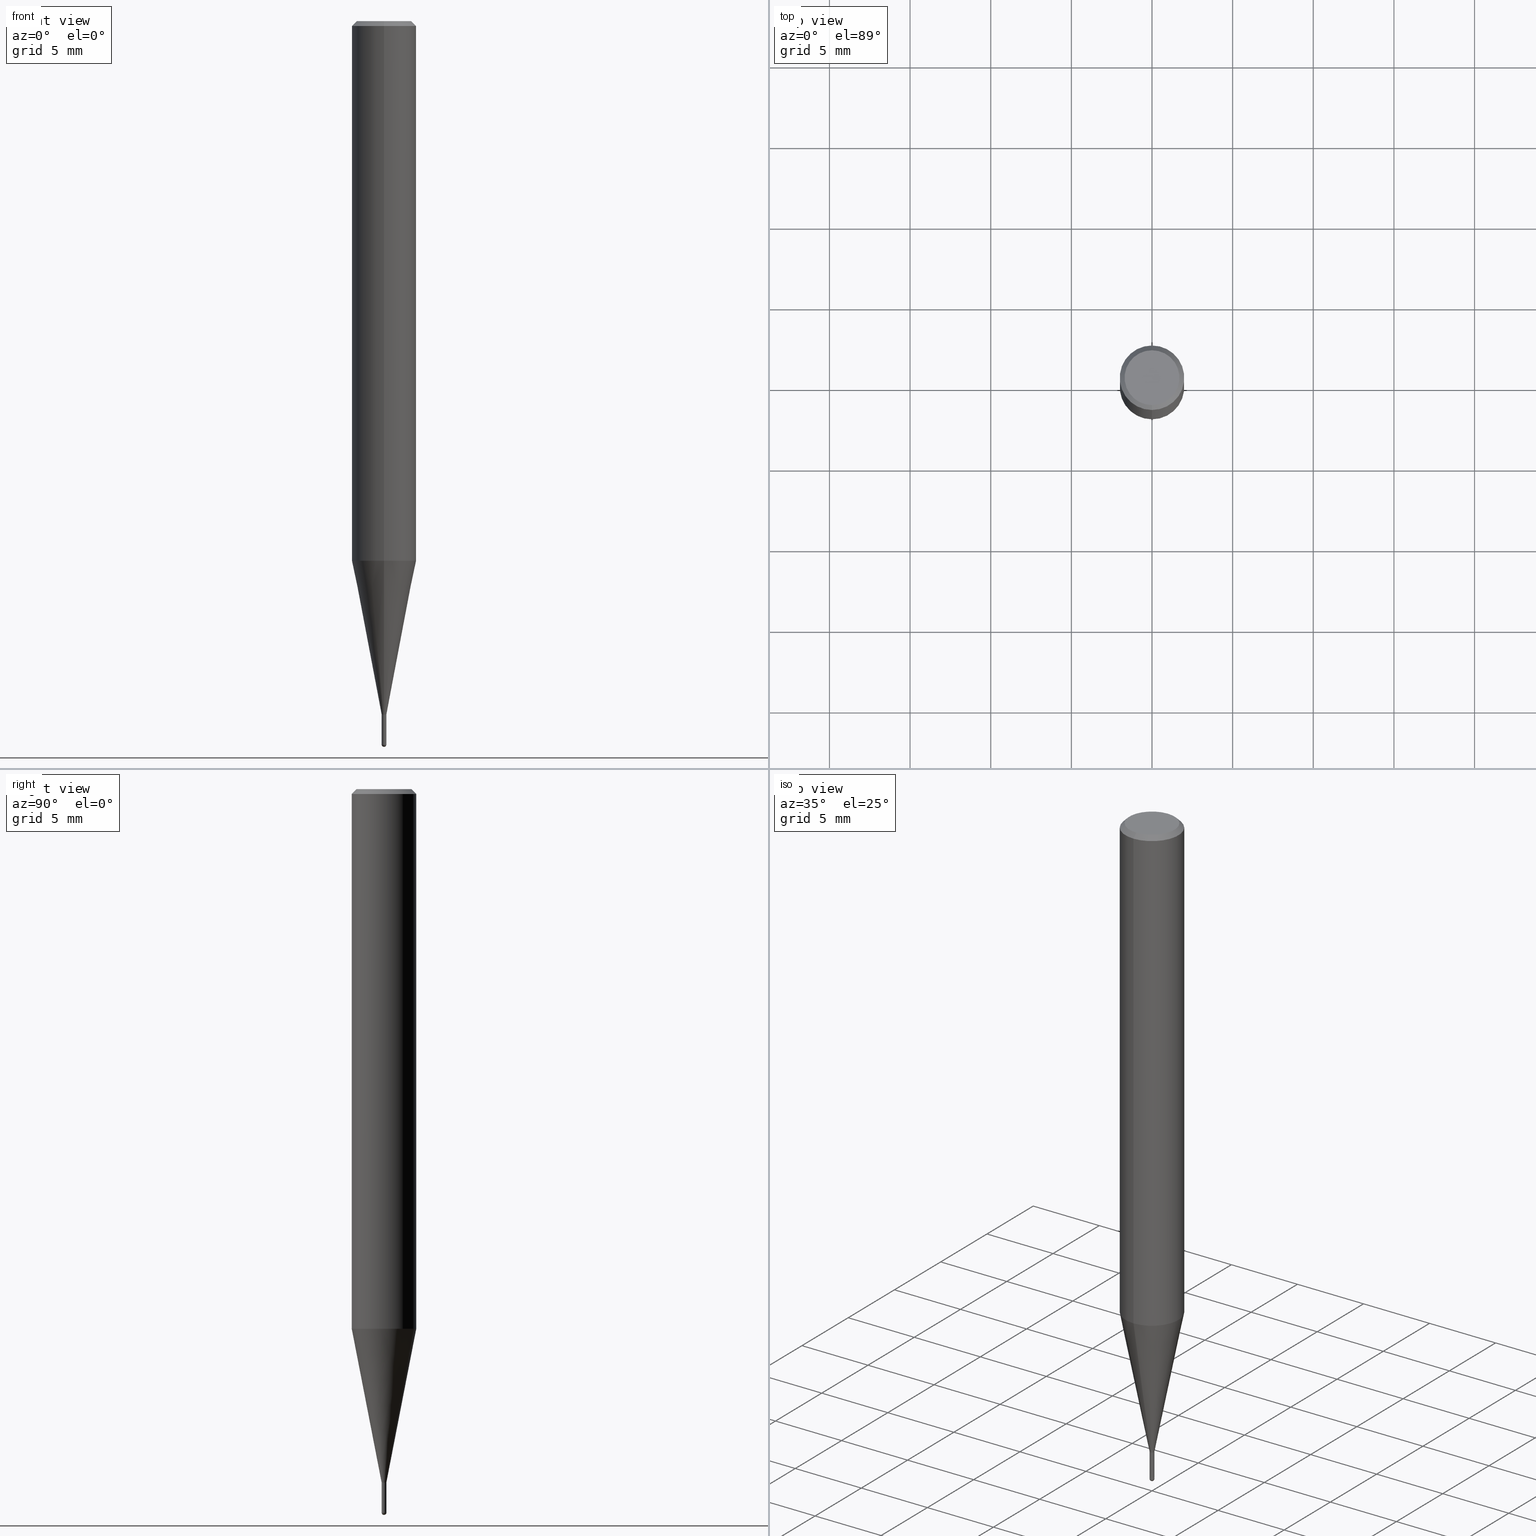
[diagram: canonical four-view strip — front | top / right | iso, engineering-drawing reading convention]
A machine part, canonical four-view strip (front | top / right | iso — engineering-drawing reading convention). The complete STEP part file that produces these views, byte-faithful:
ISO-10303-21;
HEADER;
FILE_DESCRIPTION(('no description'),'unknown implementation level');
FILE_NAME('CSELB2003-020-Huellk.stp','  ',('CIMSOURCE GmbH'),('CADClick - KiM GmbH - www.kimweb.de'),'unknown preprocess','ACIS','unknown authorization');
FILE_SCHEMA(('automotive_design'));
ENDSEC;
DATA;
#1=MECHANICAL_DESIGN_GEOMETRIC_PRESENTATION_REPRESENTATION(' ',(#14,#15,#16,#17,#18,#19,#20,#21,#22,#23,#24,#25,#26,#27,#28,#29,#30,#31,#32,#33,#34,#35,#36,#37,#38,#39,#40,#41,#42,#43,#44,#45,#46,#47,#48,#49,#50,#51,#52,#53,#54,#55,#56,#57,#58,#59,#60,#61,#62,#63,#64,#65,#66,#67,#68,#69,#70,#71,#72,#73,#74),#10);
#2=PRODUCT_DEFINITION_CONTEXT('',#75,'design');
#3=APPLICATION_PROTOCOL_DEFINITION('INTERNATIONAL STANDARD','automotive_design',1994,#75);
#4=PRODUCT_CATEGORY_RELATIONSHIP('NONE','NONE',#76,#77);
#5=SHAPE_DEFINITION_REPRESENTATION(#78,#79);
#6=PRODUCT_DEFINITION_CONTEXT('',#80,'design');
#7=APPLICATION_PROTOCOL_DEFINITION('INTERNATIONAL STANDARD','automotive_design',1994,#80);
#8=PRODUCT_CATEGORY_RELATIONSHIP('NONE','NONE',#81,#82);
#9=SHAPE_DEFINITION_REPRESENTATION(#83,#84);
#10= (GEOMETRIC_REPRESENTATION_CONTEXT(3)GLOBAL_UNCERTAINTY_ASSIGNED_CONTEXT((#87))GLOBAL_UNIT_ASSIGNED_CONTEXT((#89,#90,#91))REPRESENTATION_CONTEXT('NONE','WORKSPACE'));
#14=STYLED_ITEM('',(#93),#94);
#15=STYLED_ITEM('',(#95),#96);
#16=STYLED_ITEM('',(#97),#98);
#17=STYLED_ITEM('',(#99),#100);
#18=STYLED_ITEM('',(#101),#102);
#19=STYLED_ITEM('',(#103),#104);
#20=STYLED_ITEM('',(#105),#106);
#21=STYLED_ITEM('',(#107),#108);
#22=STYLED_ITEM('',(#109),#110);
#23=STYLED_ITEM('',(#111),#112);
#24=STYLED_ITEM('',(#113),#114);
#25=STYLED_ITEM('',(#115),#116);
#26=STYLED_ITEM('',(#117),#118);
#27=STYLED_ITEM('',(#119),#120);
#28=STYLED_ITEM('',(#121),#122);
#29=STYLED_ITEM('',(#123),#124);
#30=STYLED_ITEM('',(#125),#126);
#31=STYLED_ITEM('',(#127),#128);
#32=STYLED_ITEM('',(#129),#130);
#33=STYLED_ITEM('',(#131),#132);
#34=STYLED_ITEM('',(#133),#134);
#35=STYLED_ITEM('',(#135),#136);
#36=STYLED_ITEM('',(#137),#138);
#37=STYLED_ITEM('',(#139),#140);
#38=STYLED_ITEM('',(#141),#142);
#39=STYLED_ITEM('',(#143),#144);
#40=STYLED_ITEM('',(#145),#146);
#41=STYLED_ITEM('',(#147),#148);
#42=STYLED_ITEM('',(#149),#150);
#43=STYLED_ITEM('',(#151),#152);
#44=STYLED_ITEM('',(#153),#154);
#45=STYLED_ITEM('',(#155),#156);
#46=STYLED_ITEM('',(#157),#158);
#47=STYLED_ITEM('',(#159),#160);
#48=STYLED_ITEM('',(#161),#162);
#49=STYLED_ITEM('',(#163),#164);
#50=STYLED_ITEM('',(#165),#166);
#51=STYLED_ITEM('',(#167),#168);
#52=STYLED_ITEM('',(#169),#170);
#53=STYLED_ITEM('',(#171),#172);
#54=STYLED_ITEM('',(#173),#174);
#55=STYLED_ITEM('',(#175),#176);
#56=STYLED_ITEM('',(#177),#178);
#57=STYLED_ITEM('',(#179),#180);
#58=STYLED_ITEM('',(#181),#182);
#59=STYLED_ITEM('',(#183),#184);
#60=STYLED_ITEM('',(#185),#186);
#61=STYLED_ITEM('',(#187),#188);
#62=STYLED_ITEM('',(#189),#190);
#63=STYLED_ITEM('',(#191),#192);
#64=STYLED_ITEM('',(#193),#194);
#65=STYLED_ITEM('',(#195),#196);
#66=STYLED_ITEM('',(#197),#198);
#67=STYLED_ITEM('',(#199),#200);
#68=STYLED_ITEM('',(#201),#202);
#69=STYLED_ITEM('',(#203),#204);
#70=STYLED_ITEM('',(#205),#206);
#71=STYLED_ITEM('',(#207),#208);
#72=STYLED_ITEM('',(#209),#210);
#73=STYLED_ITEM('',(#211),#212);
#74=STYLED_ITEM('',(#213),#214);
#75=APPLICATION_CONTEXT(' ');
#76=PRODUCT_CATEGORY('part','NONE');
#77=PRODUCT_RELATED_PRODUCT_CATEGORY('detail',' ',(#215));
#78=PRODUCT_DEFINITION_SHAPE('NONE','NONE',#216);
#79=ADVANCED_BREP_SHAPE_REPRESENTATION('1',(#128,#217),#10);
#80=APPLICATION_CONTEXT(' ');
#81=PRODUCT_CATEGORY('part','NONE');
#82=PRODUCT_RELATED_PRODUCT_CATEGORY('detail',' ',(#218));
#83=PRODUCT_DEFINITION_SHAPE('NONE','NONE',#219);
#84=ADVANCED_BREP_SHAPE_REPRESENTATION('2',(#144,#220),#10);
#87=UNCERTAINTY_MEASURE_WITH_UNIT(LENGTH_MEASURE(1.0E-006),#89,'','');
#89= (CONVERSION_BASED_UNIT('MILLIMETRE',#223)LENGTH_UNIT()NAMED_UNIT(#226));
#90= (NAMED_UNIT(#228)PLANE_ANGLE_UNIT()SI_UNIT($,.RADIAN.));
#91= (NAMED_UNIT(#228)SOLID_ANGLE_UNIT()SI_UNIT($,.STERADIAN.));
#93=PRESENTATION_STYLE_ASSIGNMENT((#234));
#94=ADVANCED_FACE('',(#235),#236,.T.);
#95=PRESENTATION_STYLE_ASSIGNMENT((#237));
#96=EDGE_CURVE('',#188,#104,#238,.T.);
#97=PRESENTATION_STYLE_ASSIGNMENT((#239));
#98=ADVANCED_FACE('',(#240),#241,.T.);
#99=PRESENTATION_STYLE_ASSIGNMENT((#242));
#100=EDGE_CURVE('',#136,#176,#243,.T.);
#101=PRESENTATION_STYLE_ASSIGNMENT((#244));
#102=EDGE_CURVE('',#210,#162,#245,.T.);
#103=PRESENTATION_STYLE_ASSIGNMENT((#246));
#104=VERTEX_POINT('',#247);
#105=PRESENTATION_STYLE_ASSIGNMENT((#248));
#106=EDGE_CURVE('',#104,#188,#249,.T.);
#107=PRESENTATION_STYLE_ASSIGNMENT((#250));
#108=ADVANCED_FACE('',(#251),#252,.T.);
#109=PRESENTATION_STYLE_ASSIGNMENT((#253));
#110=VERTEX_POINT('',#254);
#111=PRESENTATION_STYLE_ASSIGNMENT((#255));
#112=EDGE_CURVE('',#182,#172,#256,.T.);
#113=PRESENTATION_STYLE_ASSIGNMENT((#257));
#114=ADVANCED_FACE('',(#258),#259,.T.);
#115=PRESENTATION_STYLE_ASSIGNMENT((#260));
#116=ADVANCED_FACE('',(#261),#262,.T.);
#117=PRESENTATION_STYLE_ASSIGNMENT((#263));
#118=EDGE_CURVE('',#176,#104,#264,.T.);
#119=PRESENTATION_STYLE_ASSIGNMENT((#265));
#120=VERTEX_POINT('',#266);
#121=PRESENTATION_STYLE_ASSIGNMENT((#267));
#122=VERTEX_POINT('',#268);
#123=PRESENTATION_STYLE_ASSIGNMENT((#269));
#124=EDGE_CURVE('',#188,#136,#270,.T.);
#125=PRESENTATION_STYLE_ASSIGNMENT((#271));
#126=EDGE_CURVE('',#162,#210,#272,.T.);
#127=PRESENTATION_STYLE_ASSIGNMENT((#273));
#128=MANIFOLD_SOLID_BREP('1',#274);
#129=PRESENTATION_STYLE_ASSIGNMENT((#275));
#130=VERTEX_POINT('',#276);
#131=PRESENTATION_STYLE_ASSIGNMENT((#277));
#132=ADVANCED_FACE('',(#278),#279,.T.);
#133=PRESENTATION_STYLE_ASSIGNMENT((#280));
#134=EDGE_CURVE('',#206,#184,#281,.T.);
#135=PRESENTATION_STYLE_ASSIGNMENT((#282));
#136=VERTEX_POINT('',#283);
#137=PRESENTATION_STYLE_ASSIGNMENT((#284));
#138=ADVANCED_FACE('',(#285),#286,.T.);
#139=PRESENTATION_STYLE_ASSIGNMENT((#287));
#140=EDGE_CURVE('',#172,#182,#288,.T.);
#141=PRESENTATION_STYLE_ASSIGNMENT((#289));
#142=EDGE_CURVE('',#172,#192,#290,.T.);
#143=PRESENTATION_STYLE_ASSIGNMENT((#291));
#144=MANIFOLD_SOLID_BREP('2',#292);
#145=PRESENTATION_STYLE_ASSIGNMENT((#293));
#146=EDGE_CURVE('',#162,#120,#294,.T.);
#147=PRESENTATION_STYLE_ASSIGNMENT((#295));
#148=EDGE_CURVE('',#120,#122,#296,.T.);
#149=PRESENTATION_STYLE_ASSIGNMENT((#297));
#150=ADVANCED_FACE('',(#298),#299,.T.);
#151=PRESENTATION_STYLE_ASSIGNMENT((#300));
#152=ADVANCED_FACE('',(#301),#302,.T.);
#153=PRESENTATION_STYLE_ASSIGNMENT((#303));
#154=ADVANCED_FACE('',(#304,#305),#306,.T.);
#155=PRESENTATION_STYLE_ASSIGNMENT((#307));
#156=ADVANCED_FACE('',(#308),#309,.T.);
#157=PRESENTATION_STYLE_ASSIGNMENT((#310));
#158=EDGE_CURVE('',#210,#184,#311,.T.);
#159=PRESENTATION_STYLE_ASSIGNMENT((#312));
#160=VERTEX_POINT('',#313);
#161=PRESENTATION_STYLE_ASSIGNMENT((#314));
#162=VERTEX_POINT('',#315);
#163=PRESENTATION_STYLE_ASSIGNMENT((#316));
#164=EDGE_CURVE('',#104,#110,#317,.T.);
#165=PRESENTATION_STYLE_ASSIGNMENT((#318));
#166=ADVANCED_FACE('',(#319),#320,.T.);
#167=PRESENTATION_STYLE_ASSIGNMENT((#321));
#168=EDGE_CURVE('',#206,#162,#322,.T.);
#169=PRESENTATION_STYLE_ASSIGNMENT((#323));
#170=ADVANCED_FACE('',(#324),#325,.T.);
#171=PRESENTATION_STYLE_ASSIGNMENT((#326));
#172=VERTEX_POINT('',#327);
#173=PRESENTATION_STYLE_ASSIGNMENT((#328));
#174=EDGE_CURVE('',#192,#130,#329,.T.);
#175=PRESENTATION_STYLE_ASSIGNMENT((#330));
#176=VERTEX_POINT('',#331);
#177=PRESENTATION_STYLE_ASSIGNMENT((#332));
#178=EDGE_CURVE('',#160,#188,#333,.T.);
#179=PRESENTATION_STYLE_ASSIGNMENT((#334));
#180=ADVANCED_FACE('',(#335),#336,.T.);
#181=PRESENTATION_STYLE_ASSIGNMENT((#337));
#182=VERTEX_POINT('',#338);
#183=PRESENTATION_STYLE_ASSIGNMENT((#339));
#184=VERTEX_POINT('',#340);
#185=PRESENTATION_STYLE_ASSIGNMENT((#341));
#186=ADVANCED_FACE('',(#342),#343,.T.);
#187=PRESENTATION_STYLE_ASSIGNMENT((#344));
#188=VERTEX_POINT('',#345);
#189=PRESENTATION_STYLE_ASSIGNMENT((#346));
#190=EDGE_CURVE('',#160,#110,#347,.T.);
#191=PRESENTATION_STYLE_ASSIGNMENT((#348));
#192=VERTEX_POINT('',#349);
#193=PRESENTATION_STYLE_ASSIGNMENT((#350));
#194=EDGE_CURVE('',#130,#192,#351,.T.);
#195=PRESENTATION_STYLE_ASSIGNMENT((#352));
#196=EDGE_CURVE('',#122,#120,#353,.T.);
#197=PRESENTATION_STYLE_ASSIGNMENT((#354));
#198=ADVANCED_FACE('',(#355),#356,.T.);
#199=PRESENTATION_STYLE_ASSIGNMENT((#357));
#200=EDGE_CURVE('',#176,#136,#358,.T.);
#201=PRESENTATION_STYLE_ASSIGNMENT((#359));
#202=EDGE_CURVE('',#130,#182,#360,.T.);
#203=PRESENTATION_STYLE_ASSIGNMENT((#361));
#204=EDGE_CURVE('',#110,#160,#362,.T.);
#205=PRESENTATION_STYLE_ASSIGNMENT((#363));
#206=VERTEX_POINT('',#364);
#207=PRESENTATION_STYLE_ASSIGNMENT((#365));
#208=EDGE_CURVE('',#122,#210,#366,.T.);
#209=PRESENTATION_STYLE_ASSIGNMENT((#367));
#210=VERTEX_POINT('',#368);
#211=PRESENTATION_STYLE_ASSIGNMENT((#369));
#212=EDGE_CURVE('',#184,#206,#370,.T.);
#213=PRESENTATION_STYLE_ASSIGNMENT((#371));
#214=EDGE_CURVE('',#172,#182,#372,.T.);
#215=PRODUCT('1','1','PART-1-DESC',(#373));
#216=PRODUCT_DEFINITION('NONE','NONE',#374,#2);
#217=AXIS2_PLACEMENT_3D('',#375,#376,#377);
#218=PRODUCT('2','2','PART-2-DESC',(#378));
#219=PRODUCT_DEFINITION('NONE','NONE',#379,#6);
#220=AXIS2_PLACEMENT_3D('',#380,#381,#382);
#223=LENGTH_MEASURE_WITH_UNIT(LENGTH_MEASURE(1.0),#383);
#226=DIMENSIONAL_EXPONENTS(1.0,0.0,0.0,0.0,0.0,0.0,0.0);
#228=DIMENSIONAL_EXPONENTS(0.0,0.0,0.0,0.0,0.0,0.0,0.0);
#234=SURFACE_STYLE_USAGE(.BOTH.,#384);
#235=FACE_OUTER_BOUND('',#385,.T.);
#236=CYLINDRICAL_SURFACE('',#386,0.14495);
#237=CURVE_STYLE('',#387,POSITIVE_LENGTH_MEASURE(1.0E-006),#388);
#238=CIRCLE('',#389,2.0);
#239=SURFACE_STYLE_USAGE(.BOTH.,#390);
#240=FACE_OUTER_BOUND('',#391,.T.);
#241=CYLINDRICAL_SURFACE('',#392,2.0);
#242=CURVE_STYLE('',#393,POSITIVE_LENGTH_MEASURE(1.0E-006),#394);
#243=CIRCLE('',#395,2.0);
#244=CURVE_STYLE('',#396,POSITIVE_LENGTH_MEASURE(1.0E-006),#397);
#245=CIRCLE('',#398,0.14495);
#246=POINT_STYLE(' ',#399,POSITIVE_LENGTH_MEASURE(1.0E-006),#400);
#247=CARTESIAN_POINT('',(2.44921270764475E-016,-2.0,-0.299999999999997));
#248=CURVE_STYLE('',#401,POSITIVE_LENGTH_MEASURE(1.0E-006),#402);
#249=CIRCLE('',#403,2.0);
#250=SURFACE_STYLE_USAGE(.BOTH.,#404);
#251=FACE_OUTER_BOUND('',#405,.T.);
#252=CONICAL_SURFACE('',#406,0.14995,0.00111111065386396);
#253=POINT_STYLE(' ',#407,POSITIVE_LENGTH_MEASURE(1.0E-006),#408);
#254=CARTESIAN_POINT('',(2.08183080149804E-016,-1.7,0.0));
#255=CURVE_STYLE('',#409,POSITIVE_LENGTH_MEASURE(1.0E-006),#410);
#256=CIRCLE('',#411,0.15);
#257=SURFACE_STYLE_USAGE(.BOTH.,#412);
#258=FACE_OUTER_BOUND('',#413,.T.);
#259=PLANE('',#414);
#260=SURFACE_STYLE_USAGE(.BOTH.,#415);
#261=FACE_OUTER_BOUND('',#416,.T.);
#262=CONICAL_SURFACE('',#417,1.07245,0.19198911666217);
#263=CURVE_STYLE('',#418,POSITIVE_LENGTH_MEASURE(1.0E-006),#419);
#264=LINE('',#420,#421);
#265=POINT_STYLE(' ',#422,POSITIVE_LENGTH_MEASURE(1.0E-006),#423);
#266=CARTESIAN_POINT('',(2.44915147732706E-016,-1.99995,-33.457));
#267=POINT_STYLE(' ',#424,POSITIVE_LENGTH_MEASURE(1.0E-006),#425);
#268=CARTESIAN_POINT('',(0.0,1.99995,-33.457));
#269=CURVE_STYLE('',#426,POSITIVE_LENGTH_MEASURE(1.0E-006),#427);
#270=LINE('',#428,#429);
#271=CURVE_STYLE('',#430,POSITIVE_LENGTH_MEASURE(1.0E-006),#431);
#272=CIRCLE('',#432,0.14495);
#273=SURFACE_STYLE_USAGE(.BOTH.,#433);
#274=CLOSED_SHELL('',(#94,#198,#98,#170,#154,#150,#186,#138,#116,#152,#180));
#275=POINT_STYLE(' ',#434,POSITIVE_LENGTH_MEASURE(1.0E-006),#435);
#276=CARTESIAN_POINT('',(0.0,0.1499,-44.76));
#277=SURFACE_STYLE_USAGE(.BOTH.,#436);
#278=FACE_OUTER_BOUND('',#437,.T.);
#279=CONICAL_SURFACE('',#438,0.14995,0.00111111065386396);
#280=CURVE_STYLE('',#439,POSITIVE_LENGTH_MEASURE(1.0E-006),#440);
#281=CIRCLE('',#441,0.14495);
#282=POINT_STYLE(' ',#442,POSITIVE_LENGTH_MEASURE(1.0E-006),#443);
#283=CARTESIAN_POINT('',(0.0,2.0,-33.457));
#284=SURFACE_STYLE_USAGE(.BOTH.,#444);
#285=FACE_OUTER_BOUND('',#445,.T.);
#286=CYLINDRICAL_SURFACE('',#446,2.0);
#287=CURVE_STYLE('',#447,POSITIVE_LENGTH_MEASURE(1.0E-006),#448);
#288=CIRCLE('',#449,0.15);
#289=CURVE_STYLE('',#450,POSITIVE_LENGTH_MEASURE(1.0E-006),#451);
#290=LINE('',#452,#453);
#291=SURFACE_STYLE_USAGE(.BOTH.,#454);
#292=CLOSED_SHELL('',(#156,#108,#114,#132,#166));
#293=CURVE_STYLE('',#455,POSITIVE_LENGTH_MEASURE(1.0E-006),#456);
#294=LINE('',#457,#458);
#295=CURVE_STYLE('',#459,POSITIVE_LENGTH_MEASURE(1.0E-006),#460);
#296=CIRCLE('',#461,1.99995);
#297=SURFACE_STYLE_USAGE(.BOTH.,#462);
#298=FACE_OUTER_BOUND('',#463,.T.);
#299=PLANE('',#464);
#300=SURFACE_STYLE_USAGE(.BOTH.,#465);
#301=FACE_OUTER_BOUND('',#466,.T.);
#302=CYLINDRICAL_SURFACE('',#467,0.14495);
#303=SURFACE_STYLE_USAGE(.BOTH.,#468);
#304=FACE_OUTER_BOUND('',#469,.T.);
#305=FACE_BOUND('',#470,.T.);
#306=PLANE('',#471);
#307=SURFACE_STYLE_USAGE(.BOTH.,#472);
#308=FACE_OUTER_BOUND('',#473,.T.);
#309=SPHERICAL_SURFACE('',#474,0.15);
#310=CURVE_STYLE('',#475,POSITIVE_LENGTH_MEASURE(1.0E-006),#476);
#311=LINE('',#477,#478);
#312=POINT_STYLE(' ',#479,POSITIVE_LENGTH_MEASURE(1.0E-006),#480);
#313=CARTESIAN_POINT('',(0.0,1.7,0.0));
#314=POINT_STYLE(' ',#481,POSITIVE_LENGTH_MEASURE(1.0E-006),#482);
#315=CARTESIAN_POINT('',(1.77506690986554E-017,-0.14495,-43.0));
#316=CURVE_STYLE('',#483,POSITIVE_LENGTH_MEASURE(1.0E-006),#484);
#317=LINE('',#485,#486);
#318=SURFACE_STYLE_USAGE(.BOTH.,#487);
#319=FACE_OUTER_BOUND('',#488,.T.);
#320=SPHERICAL_SURFACE('',#489,0.15);
#321=CURVE_STYLE('',#490,POSITIVE_LENGTH_MEASURE(1.0E-006),#491);
#322=LINE('',#492,#493);
#323=SURFACE_STYLE_USAGE(.BOTH.,#494);
#324=FACE_OUTER_BOUND('',#495,.T.);
#325=CONICAL_SURFACE('',#496,1.85,0.785398163397453);
#326=POINT_STYLE(' ',#497,POSITIVE_LENGTH_MEASURE(1.0E-006),#498);
#327=CARTESIAN_POINT('',(1.83690953073356E-017,-0.15,-44.85));
#328=CURVE_STYLE('',#499,POSITIVE_LENGTH_MEASURE(1.0E-006),#500);
#329=CIRCLE('',#501,0.1499);
#330=POINT_STYLE(' ',#502,POSITIVE_LENGTH_MEASURE(1.0E-006),#503);
#331=CARTESIAN_POINT('',(2.44921270764475E-016,-2.0,-33.457));
#332=CURVE_STYLE('',#504,POSITIVE_LENGTH_MEASURE(1.0E-006),#505);
#333=LINE('',#506,#507);
#334=SURFACE_STYLE_USAGE(.BOTH.,#508);
#335=FACE_OUTER_BOUND('',#509,.T.);
#336=PLANE('',#510);
#337=POINT_STYLE(' ',#511,POSITIVE_LENGTH_MEASURE(1.0E-006),#512);
#338=CARTESIAN_POINT('',(0.0,0.15,-44.85));
#339=POINT_STYLE(' ',#513,POSITIVE_LENGTH_MEASURE(1.0E-006),#514);
#340=CARTESIAN_POINT('',(0.0,0.14495,-44.76));
#341=SURFACE_STYLE_USAGE(.BOTH.,#515);
#342=FACE_OUTER_BOUND('',#516,.T.);
#343=CONICAL_SURFACE('',#517,1.85,0.785398163397453);
#344=POINT_STYLE(' ',#518,POSITIVE_LENGTH_MEASURE(1.0E-006),#519);
#345=CARTESIAN_POINT('',(0.0,2.0,-0.299999999999997));
#346=CURVE_STYLE('',#520,POSITIVE_LENGTH_MEASURE(1.0E-006),#521);
#347=CIRCLE('',#522,1.7);
#348=POINT_STYLE(' ',#523,POSITIVE_LENGTH_MEASURE(1.0E-006),#524);
#349=CARTESIAN_POINT('',(1.83568492437974E-017,-0.1499,-44.76));
#350=CURVE_STYLE('',#525,POSITIVE_LENGTH_MEASURE(1.0E-006),#526);
#351=CIRCLE('',#527,0.1499);
#352=CURVE_STYLE('',#528,POSITIVE_LENGTH_MEASURE(1.0E-006),#529);
#353=CIRCLE('',#530,1.99995);
#354=SURFACE_STYLE_USAGE(.BOTH.,#531);
#355=FACE_OUTER_BOUND('',#532,.T.);
#356=CONICAL_SURFACE('',#533,1.07245,0.19198911666217);
#357=CURVE_STYLE('',#534,POSITIVE_LENGTH_MEASURE(1.0E-006),#535);
#358=CIRCLE('',#536,2.0);
#359=CURVE_STYLE('',#537,POSITIVE_LENGTH_MEASURE(1.0E-006),#538);
#360=LINE('',#539,#540);
#361=CURVE_STYLE('',#541,POSITIVE_LENGTH_MEASURE(1.0E-006),#542);
#362=CIRCLE('',#543,1.7);
#363=POINT_STYLE(' ',#544,POSITIVE_LENGTH_MEASURE(1.0E-006),#545);
#364=CARTESIAN_POINT('',(1.77506690986554E-017,-0.14495,-44.76));
#365=CURVE_STYLE('',#546,POSITIVE_LENGTH_MEASURE(1.0E-006),#547);
#366=LINE('',#548,#549);
#367=POINT_STYLE(' ',#550,POSITIVE_LENGTH_MEASURE(1.0E-006),#551);
#368=CARTESIAN_POINT('',(0.0,0.14495,-43.0));
#369=CURVE_STYLE('',#552,POSITIVE_LENGTH_MEASURE(1.0E-006),#553);
#370=CIRCLE('',#554,0.14495);
#371=CURVE_STYLE('',#555,POSITIVE_LENGTH_MEASURE(1.0E-006),#556);
#372=CIRCLE('',#557,0.15);
#373=PRODUCT_CONTEXT('',#75,'mechanical');
#374=PRODUCT_DEFINITION_FORMATION_WITH_SPECIFIED_SOURCE(' ','NONE',#215,.NOT_KNOWN.);
#375=CARTESIAN_POINT('',(0.0,0.0,0.0));
#376=DIRECTION('',(0.0,0.0,1.0));
#377=DIRECTION('',(1.0,0.0,0.0));
#378=PRODUCT_CONTEXT('',#80,'mechanical');
#379=PRODUCT_DEFINITION_FORMATION_WITH_SPECIFIED_SOURCE(' ','NONE',#218,.NOT_KNOWN.);
#380=CARTESIAN_POINT('',(0.0,0.0,0.0));
#381=DIRECTION('',(0.0,0.0,1.0));
#382=DIRECTION('',(1.0,0.0,0.0));
#383= (NAMED_UNIT(#226)LENGTH_UNIT()SI_UNIT(.MILLI.,.METRE.));
#384=SURFACE_SIDE_STYLE('',(#559));
#385=EDGE_LOOP('',(#560,#561,#562,#563));
#386=AXIS2_PLACEMENT_3D('',#564,#565,#566);
#387=DRAUGHTING_PRE_DEFINED_CURVE_FONT('continuous');
#388=COLOUR_RGB('',0.498039215803146,0.498039215803146,0.498039215803146);
#389=AXIS2_PLACEMENT_3D('',#567,#568,#569);
#390=SURFACE_SIDE_STYLE('',(#570));
#391=EDGE_LOOP('',(#571,#572,#573,#574));
#392=AXIS2_PLACEMENT_3D('',#575,#576,#577);
#393=DRAUGHTING_PRE_DEFINED_CURVE_FONT('continuous');
#394=COLOUR_RGB('',0.498039215803146,0.498039215803146,0.498039215803146);
#395=AXIS2_PLACEMENT_3D('',#578,#579,#580);
#396=DRAUGHTING_PRE_DEFINED_CURVE_FONT('continuous');
#397=COLOUR_RGB('',0.498039215803146,0.498039215803146,0.498039215803146);
#398=AXIS2_PLACEMENT_3D('',#581,#582,#583);
#399=PRE_DEFINED_MARKER('');
#400=COLOUR_RGB('',0.498039215803146,0.498039215803146,0.498039215803146);
#401=DRAUGHTING_PRE_DEFINED_CURVE_FONT('continuous');
#402=COLOUR_RGB('',0.498039215803146,0.498039215803146,0.498039215803146);
#403=AXIS2_PLACEMENT_3D('',#584,#585,#586);
#404=SURFACE_SIDE_STYLE('',(#587));
#405=EDGE_LOOP('',(#588,#589,#590,#591));
#406=AXIS2_PLACEMENT_3D('',#592,#593,#594);
#407=PRE_DEFINED_MARKER('');
#408=COLOUR_RGB('',0.498039215803146,0.498039215803146,0.498039215803146);
#409=DRAUGHTING_PRE_DEFINED_CURVE_FONT('continuous');
#410=COLOUR_RGB('',0.800000011920929,0.800000011920929,0.800000011920929);
#411=AXIS2_PLACEMENT_3D('',#595,#596,#597);
#412=SURFACE_SIDE_STYLE('',(#598));
#413=EDGE_LOOP('',(#599,#600));
#414=AXIS2_PLACEMENT_3D('',#601,#602,#603);
#415=SURFACE_SIDE_STYLE('',(#604));
#416=EDGE_LOOP('',(#605,#606,#607,#608));
#417=AXIS2_PLACEMENT_3D('',#609,#610,#611);
#418=DRAUGHTING_PRE_DEFINED_CURVE_FONT('continuous');
#419=COLOUR_RGB('',0.498039215803146,0.498039215803146,0.498039215803146);
#420=CARTESIAN_POINT('',(2.44921270764475E-016,-2.0,-16.8785));
#421=VECTOR('',#612,1.0);
#422=PRE_DEFINED_MARKER('');
#423=COLOUR_RGB('',0.498039215803146,0.498039215803146,0.498039215803146);
#424=PRE_DEFINED_MARKER('');
#425=COLOUR_RGB('',0.498039215803146,0.498039215803146,0.498039215803146);
#426=DRAUGHTING_PRE_DEFINED_CURVE_FONT('continuous');
#427=COLOUR_RGB('',0.498039215803146,0.498039215803146,0.498039215803146);
#428=CARTESIAN_POINT('',(-2.44921270764475E-016,2.0,-16.8785));
#429=VECTOR('',#613,1.0);
#430=DRAUGHTING_PRE_DEFINED_CURVE_FONT('continuous');
#431=COLOUR_RGB('',0.498039215803146,0.498039215803146,0.498039215803146);
#432=AXIS2_PLACEMENT_3D('',#614,#615,#616);
#433=SURFACE_SIDE_STYLE('',(#617));
#434=PRE_DEFINED_MARKER('');
#435=COLOUR_RGB('',0.800000011920929,0.800000011920929,0.800000011920929);
#436=SURFACE_SIDE_STYLE('',(#618));
#437=EDGE_LOOP('',(#619,#620,#621,#622));
#438=AXIS2_PLACEMENT_3D('',#623,#624,#625);
#439=DRAUGHTING_PRE_DEFINED_CURVE_FONT('continuous');
#440=COLOUR_RGB('',0.498039215803146,0.498039215803146,0.498039215803146);
#441=AXIS2_PLACEMENT_3D('',#626,#627,#628);
#442=PRE_DEFINED_MARKER('');
#443=COLOUR_RGB('',0.498039215803146,0.498039215803146,0.498039215803146);
#444=SURFACE_SIDE_STYLE('',(#629));
#445=EDGE_LOOP('',(#630,#631,#632,#633));
#446=AXIS2_PLACEMENT_3D('',#634,#635,#636);
#447=DRAUGHTING_PRE_DEFINED_CURVE_FONT('continuous');
#448=COLOUR_RGB('',0.800000011920929,0.800000011920929,0.800000011920929);
#449=AXIS2_PLACEMENT_3D('',#637,#638,#639);
#450=DRAUGHTING_PRE_DEFINED_CURVE_FONT('continuous');
#451=COLOUR_RGB('',0.800000011920929,0.800000011920929,0.800000011920929);
#452=CARTESIAN_POINT('',(1.83629722755665E-017,-0.14995,-44.805));
#453=VECTOR('',#640,1.0);
#454=SURFACE_SIDE_STYLE('',(#641));
#455=DRAUGHTING_PRE_DEFINED_CURVE_FONT('continuous');
#456=COLOUR_RGB('',0.498039215803146,0.498039215803146,0.498039215803146);
#457=CARTESIAN_POINT('',(1.31332908415681E-016,-1.07245,-38.2285));
#458=VECTOR('',#642,1.0);
#459=DRAUGHTING_PRE_DEFINED_CURVE_FONT('continuous');
#460=COLOUR_RGB('',0.498039215803146,0.498039215803146,0.498039215803146);
#461=AXIS2_PLACEMENT_3D('',#643,#644,#645);
#462=SURFACE_SIDE_STYLE('',(#646));
#463=EDGE_LOOP('',(#647,#648));
#464=AXIS2_PLACEMENT_3D('',#649,#650,#651);
#465=SURFACE_SIDE_STYLE('',(#652));
#466=EDGE_LOOP('',(#653,#654,#655,#656));
#467=AXIS2_PLACEMENT_3D('',#657,#658,#659);
#468=SURFACE_SIDE_STYLE('',(#660));
#469=EDGE_LOOP('',(#661,#662));
#470=EDGE_LOOP('',(#663,#664));
#471=AXIS2_PLACEMENT_3D('',#665,#666,#667);
#472=SURFACE_SIDE_STYLE('',(#668));
#473=EDGE_LOOP('',(#669,#670));
#474=AXIS2_PLACEMENT_3D('',#671,#672,#673);
#475=DRAUGHTING_PRE_DEFINED_CURVE_FONT('continuous');
#476=COLOUR_RGB('',0.498039215803146,0.498039215803146,0.498039215803146);
#477=CARTESIAN_POINT('',(-1.77506690986554E-017,0.14495,-43.88));
#478=VECTOR('',#674,1.0);
#479=PRE_DEFINED_MARKER('');
#480=COLOUR_RGB('',0.498039215803146,0.498039215803146,0.498039215803146);
#481=PRE_DEFINED_MARKER('');
#482=COLOUR_RGB('',0.498039215803146,0.498039215803146,0.498039215803146);
#483=DRAUGHTING_PRE_DEFINED_CURVE_FONT('continuous');
#484=COLOUR_RGB('',0.498039215803146,0.498039215803146,0.498039215803146);
#485=CARTESIAN_POINT('',(2.2655217545714E-016,-1.85,-0.149999999999999));
#486=VECTOR('',#675,1.0);
#487=SURFACE_SIDE_STYLE('',(#676));
#488=EDGE_LOOP('',(#677,#678));
#489=AXIS2_PLACEMENT_3D('',#679,#680,#681);
#490=DRAUGHTING_PRE_DEFINED_CURVE_FONT('continuous');
#491=COLOUR_RGB('',0.498039215803146,0.498039215803146,0.498039215803146);
#492=CARTESIAN_POINT('',(1.77506690986554E-017,-0.14495,-43.88));
#493=VECTOR('',#682,1.0);
#494=SURFACE_SIDE_STYLE('',(#683));
#495=EDGE_LOOP('',(#684,#685,#686,#687));
#496=AXIS2_PLACEMENT_3D('',#688,#689,#690);
#497=PRE_DEFINED_MARKER('');
#498=COLOUR_RGB('',0.800000011920929,0.800000011920929,0.800000011920929);
#499=DRAUGHTING_PRE_DEFINED_CURVE_FONT('continuous');
#500=COLOUR_RGB('',0.800000011920929,0.800000011920929,0.800000011920929);
#501=AXIS2_PLACEMENT_3D('',#691,#692,#693);
#502=PRE_DEFINED_MARKER('');
#503=COLOUR_RGB('',0.498039215803146,0.498039215803146,0.498039215803146);
#504=DRAUGHTING_PRE_DEFINED_CURVE_FONT('continuous');
#505=COLOUR_RGB('',0.498039215803146,0.498039215803146,0.498039215803146);
#506=CARTESIAN_POINT('',(-2.2655217545714E-016,1.85,-0.149999999999999));
#507=VECTOR('',#694,1.0);
#508=SURFACE_SIDE_STYLE('',(#695));
#509=EDGE_LOOP('',(#696,#697));
#510=AXIS2_PLACEMENT_3D('',#698,#699,#700);
#511=PRE_DEFINED_MARKER('');
#512=COLOUR_RGB('',0.800000011920929,0.800000011920929,0.800000011920929);
#513=PRE_DEFINED_MARKER('');
#514=COLOUR_RGB('',0.498039215803146,0.498039215803146,0.498039215803146);
#515=SURFACE_SIDE_STYLE('',(#701));
#516=EDGE_LOOP('',(#702,#703,#704,#705));
#517=AXIS2_PLACEMENT_3D('',#706,#707,#708);
#518=PRE_DEFINED_MARKER('');
#519=COLOUR_RGB('',0.498039215803146,0.498039215803146,0.498039215803146);
#520=DRAUGHTING_PRE_DEFINED_CURVE_FONT('continuous');
#521=COLOUR_RGB('',0.498039215803146,0.498039215803146,0.498039215803146);
#522=AXIS2_PLACEMENT_3D('',#709,#710,#711);
#523=PRE_DEFINED_MARKER('');
#524=COLOUR_RGB('',0.800000011920929,0.800000011920929,0.800000011920929);
#525=DRAUGHTING_PRE_DEFINED_CURVE_FONT('continuous');
#526=COLOUR_RGB('',0.800000011920929,0.800000011920929,0.800000011920929);
#527=AXIS2_PLACEMENT_3D('',#712,#713,#714);
#528=DRAUGHTING_PRE_DEFINED_CURVE_FONT('continuous');
#529=COLOUR_RGB('',0.498039215803146,0.498039215803146,0.498039215803146);
#530=AXIS2_PLACEMENT_3D('',#715,#716,#717);
#531=SURFACE_SIDE_STYLE('',(#718));
#532=EDGE_LOOP('',(#719,#720,#721,#722));
#533=AXIS2_PLACEMENT_3D('',#723,#724,#725);
#534=DRAUGHTING_PRE_DEFINED_CURVE_FONT('continuous');
#535=COLOUR_RGB('',0.498039215803146,0.498039215803146,0.498039215803146);
#536=AXIS2_PLACEMENT_3D('',#726,#727,#728);
#537=DRAUGHTING_PRE_DEFINED_CURVE_FONT('continuous');
#538=COLOUR_RGB('',0.800000011920929,0.800000011920929,0.800000011920929);
#539=CARTESIAN_POINT('',(-1.83629722755665E-017,0.14995,-44.805));
#540=VECTOR('',#729,1.0);
#541=DRAUGHTING_PRE_DEFINED_CURVE_FONT('continuous');
#542=COLOUR_RGB('',0.498039215803146,0.498039215803146,0.498039215803146);
#543=AXIS2_PLACEMENT_3D('',#730,#731,#732);
#544=PRE_DEFINED_MARKER('');
#545=COLOUR_RGB('',0.498039215803146,0.498039215803146,0.498039215803146);
#546=DRAUGHTING_PRE_DEFINED_CURVE_FONT('continuous');
#547=COLOUR_RGB('',0.498039215803146,0.498039215803146,0.498039215803146);
#548=CARTESIAN_POINT('',(-1.31332908415681E-016,1.07245,-38.2285));
#549=VECTOR('',#733,1.0);
#550=PRE_DEFINED_MARKER('');
#551=COLOUR_RGB('',0.498039215803146,0.498039215803146,0.498039215803146);
#552=DRAUGHTING_PRE_DEFINED_CURVE_FONT('continuous');
#553=COLOUR_RGB('',0.498039215803146,0.498039215803146,0.498039215803146);
#554=AXIS2_PLACEMENT_3D('',#734,#735,#736);
#555=DRAUGHTING_PRE_DEFINED_CURVE_FONT('continuous');
#556=COLOUR_RGB('',0.800000011920929,0.800000011920929,0.800000011920929);
#557=AXIS2_PLACEMENT_3D('',#737,#738,#739);
#559=SURFACE_STYLE_FILL_AREA(#740);
#560=ORIENTED_EDGE('',*,*,#158,.F.);
#561=ORIENTED_EDGE('',*,*,#102,.T.);
#562=ORIENTED_EDGE('',*,*,#168,.F.);
#563=ORIENTED_EDGE('',*,*,#212,.F.);
#564=CARTESIAN_POINT('',(0.0,0.0,-43.88));
#565=DIRECTION('',(-0.0,-0.0,1.0));
#566=DIRECTION('',(0.0,1.0,0.0));
#567=CARTESIAN_POINT('',(0.0,0.0,-0.299999999999997));
#568=DIRECTION('',(0.0,0.0,-1.0));
#569=DIRECTION('',(0.0,1.0,0.0));
#570=SURFACE_STYLE_FILL_AREA(#741);
#571=ORIENTED_EDGE('',*,*,#124,.F.);
#572=ORIENTED_EDGE('',*,*,#96,.T.);
#573=ORIENTED_EDGE('',*,*,#118,.F.);
#574=ORIENTED_EDGE('',*,*,#100,.F.);
#575=CARTESIAN_POINT('',(0.0,0.0,-16.8785));
#576=DIRECTION('',(-0.0,-0.0,1.0));
#577=DIRECTION('',(0.0,1.0,0.0));
#578=CARTESIAN_POINT('',(0.0,0.0,-33.457));
#579=DIRECTION('',(0.0,0.0,-1.0));
#580=DIRECTION('',(0.0,1.0,0.0));
#581=CARTESIAN_POINT('',(0.0,0.0,-43.0));
#582=DIRECTION('',(0.0,0.0,-1.0));
#583=DIRECTION('',(0.0,1.0,0.0));
#584=CARTESIAN_POINT('',(0.0,0.0,-0.299999999999997));
#585=DIRECTION('',(0.0,0.0,-1.0));
#586=DIRECTION('',(0.0,1.0,0.0));
#587=SURFACE_STYLE_FILL_AREA(#742);
#588=ORIENTED_EDGE('',*,*,#202,.F.);
#589=ORIENTED_EDGE('',*,*,#194,.T.);
#590=ORIENTED_EDGE('',*,*,#142,.F.);
#591=ORIENTED_EDGE('',*,*,#112,.F.);
#592=CARTESIAN_POINT('',(0.0,0.0,-44.805));
#593=DIRECTION('',(0.0,-0.0,-1.0));
#594=DIRECTION('',(0.0,1.0,0.0));
#595=CARTESIAN_POINT('',(0.0,0.0,-44.85));
#596=DIRECTION('',(0.0,0.0,-1.0));
#597=DIRECTION('',(0.0,1.0,0.0));
#598=SURFACE_STYLE_FILL_AREA(#743);
#599=ORIENTED_EDGE('',*,*,#194,.F.);
#600=ORIENTED_EDGE('',*,*,#174,.F.);
#601=CARTESIAN_POINT('',(0.0,0.07495,-44.76));
#602=DIRECTION('',(-0.0,0.0,1.0));
#603=DIRECTION('',(0.0,-1.0,0.0));
#604=SURFACE_STYLE_FILL_AREA(#744);
#605=ORIENTED_EDGE('',*,*,#208,.T.);
#606=ORIENTED_EDGE('',*,*,#126,.F.);
#607=ORIENTED_EDGE('',*,*,#146,.T.);
#608=ORIENTED_EDGE('',*,*,#148,.T.);
#609=CARTESIAN_POINT('',(0.0,0.0,-38.2285));
#610=DIRECTION('',(-0.0,-0.0,1.0));
#611=DIRECTION('',(0.0,1.0,0.0));
#612=DIRECTION('',(-0.0,-0.0,1.0));
#613=DIRECTION('',(0.0,0.0,-1.0));
#614=CARTESIAN_POINT('',(0.0,0.0,-43.0));
#615=DIRECTION('',(0.0,0.0,-1.0));
#616=DIRECTION('',(0.0,1.0,0.0));
#617=SURFACE_STYLE_FILL_AREA(#745);
#618=SURFACE_STYLE_FILL_AREA(#746);
#619=ORIENTED_EDGE('',*,*,#202,.T.);
#620=ORIENTED_EDGE('',*,*,#140,.F.);
#621=ORIENTED_EDGE('',*,*,#142,.T.);
#622=ORIENTED_EDGE('',*,*,#174,.T.);
#623=CARTESIAN_POINT('',(0.0,0.0,-44.805));
#624=DIRECTION('',(0.0,-0.0,-1.0));
#625=DIRECTION('',(0.0,1.0,0.0));
#626=CARTESIAN_POINT('',(0.0,0.0,-44.76));
#627=DIRECTION('',(0.0,0.0,-1.0));
#628=DIRECTION('',(0.0,1.0,0.0));
#629=SURFACE_STYLE_FILL_AREA(#747);
#630=ORIENTED_EDGE('',*,*,#124,.T.);
#631=ORIENTED_EDGE('',*,*,#200,.F.);
#632=ORIENTED_EDGE('',*,*,#118,.T.);
#633=ORIENTED_EDGE('',*,*,#106,.T.);
#634=CARTESIAN_POINT('',(0.0,0.0,-16.8785));
#635=DIRECTION('',(-0.0,-0.0,1.0));
#636=DIRECTION('',(0.0,1.0,0.0));
#637=CARTESIAN_POINT('',(0.0,0.0,-44.85));
#638=DIRECTION('',(0.0,0.0,-1.0));
#639=DIRECTION('',(0.0,1.0,0.0));
#640=DIRECTION('',(-1.36067288654788E-019,0.00111111042524057,0.999999382716621));
#641=SURFACE_STYLE_FILL_AREA(#748);
#642=DIRECTION('',(2.33669392942694E-017,-0.190811841056793,0.981626630299177));
#643=CARTESIAN_POINT('',(0.0,0.0,-33.457));
#644=DIRECTION('',(0.0,0.0,-1.0));
#645=DIRECTION('',(0.0,1.0,0.0));
#646=SURFACE_STYLE_FILL_AREA(#749);
#647=ORIENTED_EDGE('',*,*,#190,.F.);
#648=ORIENTED_EDGE('',*,*,#204,.F.);
#649=CARTESIAN_POINT('',(0.0,0.85,0.0));
#650=DIRECTION('',(-0.0,0.0,1.0));
#651=DIRECTION('',(0.0,-1.0,0.0));
#652=SURFACE_STYLE_FILL_AREA(#750);
#653=ORIENTED_EDGE('',*,*,#158,.T.);
#654=ORIENTED_EDGE('',*,*,#134,.F.);
#655=ORIENTED_EDGE('',*,*,#168,.T.);
#656=ORIENTED_EDGE('',*,*,#126,.T.);
#657=CARTESIAN_POINT('',(0.0,0.0,-43.88));
#658=DIRECTION('',(-0.0,-0.0,1.0));
#659=DIRECTION('',(0.0,1.0,0.0));
#660=SURFACE_STYLE_FILL_AREA(#751);
#661=ORIENTED_EDGE('',*,*,#100,.T.);
#662=ORIENTED_EDGE('',*,*,#200,.T.);
#663=ORIENTED_EDGE('',*,*,#196,.F.);
#664=ORIENTED_EDGE('',*,*,#148,.F.);
#665=CARTESIAN_POINT('',(0.0,1.0,-33.457));
#666=DIRECTION('',(0.0,0.0,-1.0));
#667=DIRECTION('',(0.0,1.0,0.0));
#668=SURFACE_STYLE_FILL_AREA(#752);
#669=ORIENTED_EDGE('',*,*,#214,.F.);
#670=ORIENTED_EDGE('',*,*,#140,.T.);
#671=CARTESIAN_POINT('',(0.0,0.0,-44.85));
#672=DIRECTION('',(0.0,1.0,0.0));
#673=DIRECTION('',(0.0,0.0,-1.0));
#674=DIRECTION('',(0.0,0.0,-1.0));
#675=DIRECTION('',(-8.6592745707194E-017,0.707106781186551,0.707106781186544));
#676=SURFACE_STYLE_FILL_AREA(#753);
#677=ORIENTED_EDGE('',*,*,#214,.T.);
#678=ORIENTED_EDGE('',*,*,#112,.T.);
#679=CARTESIAN_POINT('',(0.0,0.0,-44.85));
#680=DIRECTION('',(0.0,1.0,0.0));
#681=DIRECTION('',(0.0,0.0,-1.0));
#682=DIRECTION('',(-0.0,-0.0,1.0));
#683=SURFACE_STYLE_FILL_AREA(#754);
#684=ORIENTED_EDGE('',*,*,#178,.F.);
#685=ORIENTED_EDGE('',*,*,#190,.T.);
#686=ORIENTED_EDGE('',*,*,#164,.F.);
#687=ORIENTED_EDGE('',*,*,#96,.F.);
#688=CARTESIAN_POINT('',(0.0,0.0,-0.149999999999999));
#689=DIRECTION('',(0.0,-0.0,-1.0));
#690=DIRECTION('',(0.0,1.0,0.0));
#691=CARTESIAN_POINT('',(0.0,0.0,-44.76));
#692=DIRECTION('',(0.0,0.0,-1.0));
#693=DIRECTION('',(0.0,1.0,0.0));
#694=DIRECTION('',(-8.6592745707194E-017,0.707106781186551,-0.707106781186544));
#695=SURFACE_STYLE_FILL_AREA(#755);
#696=ORIENTED_EDGE('',*,*,#212,.T.);
#697=ORIENTED_EDGE('',*,*,#134,.T.);
#698=CARTESIAN_POINT('',(0.0,0.072475,-44.76));
#699=DIRECTION('',(0.0,0.0,-1.0));
#700=DIRECTION('',(0.0,1.0,0.0));
#701=SURFACE_STYLE_FILL_AREA(#756);
#702=ORIENTED_EDGE('',*,*,#178,.T.);
#703=ORIENTED_EDGE('',*,*,#106,.F.);
#704=ORIENTED_EDGE('',*,*,#164,.T.);
#705=ORIENTED_EDGE('',*,*,#204,.T.);
#706=CARTESIAN_POINT('',(0.0,0.0,-0.149999999999999));
#707=DIRECTION('',(0.0,-0.0,-1.0));
#708=DIRECTION('',(0.0,1.0,0.0));
#709=CARTESIAN_POINT('',(0.0,0.0,0.0));
#710=DIRECTION('',(0.0,0.0,-1.0));
#711=DIRECTION('',(0.0,1.0,0.0));
#712=CARTESIAN_POINT('',(0.0,0.0,-44.76));
#713=DIRECTION('',(0.0,0.0,-1.0));
#714=DIRECTION('',(0.0,1.0,0.0));
#715=CARTESIAN_POINT('',(0.0,0.0,-33.457));
#716=DIRECTION('',(0.0,0.0,-1.0));
#717=DIRECTION('',(0.0,1.0,0.0));
#718=SURFACE_STYLE_FILL_AREA(#757);
#719=ORIENTED_EDGE('',*,*,#208,.F.);
#720=ORIENTED_EDGE('',*,*,#196,.T.);
#721=ORIENTED_EDGE('',*,*,#146,.F.);
#722=ORIENTED_EDGE('',*,*,#102,.F.);
#723=CARTESIAN_POINT('',(0.0,0.0,-38.2285));
#724=DIRECTION('',(-0.0,-0.0,1.0));
#725=DIRECTION('',(0.0,1.0,0.0));
#726=CARTESIAN_POINT('',(0.0,0.0,-33.457));
#727=DIRECTION('',(0.0,0.0,-1.0));
#728=DIRECTION('',(0.0,1.0,0.0));
#729=DIRECTION('',(-1.36067288654788E-019,0.00111111042524057,-0.999999382716621));
#730=CARTESIAN_POINT('',(0.0,0.0,0.0));
#731=DIRECTION('',(0.0,0.0,-1.0));
#732=DIRECTION('',(0.0,1.0,0.0));
#733=DIRECTION('',(2.33669392942694E-017,-0.190811841056793,-0.981626630299177));
#734=CARTESIAN_POINT('',(0.0,0.0,-44.76));
#735=DIRECTION('',(0.0,0.0,-1.0));
#736=DIRECTION('',(0.0,1.0,0.0));
#737=CARTESIAN_POINT('',(0.0,0.0,-44.85));
#738=DIRECTION('',(1.0,0.0,1.22460635382239E-016));
#739=DIRECTION('',(-1.22460635382239E-016,0.0,1.0));
#740=FILL_AREA_STYLE('',(#758));
#741=FILL_AREA_STYLE('',(#759));
#742=FILL_AREA_STYLE('',(#760));
#743=FILL_AREA_STYLE('',(#761));
#744=FILL_AREA_STYLE('',(#762));
#745=FILL_AREA_STYLE('',(#763));
#746=FILL_AREA_STYLE('',(#764));
#747=FILL_AREA_STYLE('',(#765));
#748=FILL_AREA_STYLE('',(#766));
#749=FILL_AREA_STYLE('',(#767));
#750=FILL_AREA_STYLE('',(#768));
#751=FILL_AREA_STYLE('',(#769));
#752=FILL_AREA_STYLE('',(#770));
#753=FILL_AREA_STYLE('',(#771));
#754=FILL_AREA_STYLE('',(#772));
#755=FILL_AREA_STYLE('',(#773));
#756=FILL_AREA_STYLE('',(#774));
#757=FILL_AREA_STYLE('',(#775));
#758=FILL_AREA_STYLE_COLOUR('',#776);
#759=FILL_AREA_STYLE_COLOUR('',#777);
#760=FILL_AREA_STYLE_COLOUR('',#778);
#761=FILL_AREA_STYLE_COLOUR('',#779);
#762=FILL_AREA_STYLE_COLOUR('',#780);
#763=FILL_AREA_STYLE_COLOUR('',#781);
#764=FILL_AREA_STYLE_COLOUR('',#782);
#765=FILL_AREA_STYLE_COLOUR('',#783);
#766=FILL_AREA_STYLE_COLOUR('',#784);
#767=FILL_AREA_STYLE_COLOUR('',#785);
#768=FILL_AREA_STYLE_COLOUR('',#786);
#769=FILL_AREA_STYLE_COLOUR('',#787);
#770=FILL_AREA_STYLE_COLOUR('',#788);
#771=FILL_AREA_STYLE_COLOUR('',#789);
#772=FILL_AREA_STYLE_COLOUR('',#790);
#773=FILL_AREA_STYLE_COLOUR('',#791);
#774=FILL_AREA_STYLE_COLOUR('',#792);
#775=FILL_AREA_STYLE_COLOUR('',#793);
#776=COLOUR_RGB('',0.498039215803146,0.498039215803146,0.498039215803146);
#777=COLOUR_RGB('',0.498039215803146,0.498039215803146,0.498039215803146);
#778=COLOUR_RGB('',0.800000011920929,0.800000011920929,0.800000011920929);
#779=COLOUR_RGB('',0.800000011920929,0.800000011920929,0.800000011920929);
#780=COLOUR_RGB('',0.498039215803146,0.498039215803146,0.498039215803146);
#781=COLOUR_RGB('',0.498039215803146,0.498039215803146,0.498039215803146);
#782=COLOUR_RGB('',0.800000011920929,0.800000011920929,0.800000011920929);
#783=COLOUR_RGB('',0.498039215803146,0.498039215803146,0.498039215803146);
#784=COLOUR_RGB('',0.800000011920929,0.800000011920929,0.800000011920929);
#785=COLOUR_RGB('',0.498039215803146,0.498039215803146,0.498039215803146);
#786=COLOUR_RGB('',0.498039215803146,0.498039215803146,0.498039215803146);
#787=COLOUR_RGB('',0.498039215803146,0.498039215803146,0.498039215803146);
#788=COLOUR_RGB('',0.800000011920929,0.800000011920929,0.800000011920929);
#789=COLOUR_RGB('',0.800000011920929,0.800000011920929,0.800000011920929);
#790=COLOUR_RGB('',0.498039215803146,0.498039215803146,0.498039215803146);
#791=COLOUR_RGB('',0.498039215803146,0.498039215803146,0.498039215803146);
#792=COLOUR_RGB('',0.498039215803146,0.498039215803146,0.498039215803146);
#793=COLOUR_RGB('',0.498039215803146,0.498039215803146,0.498039215803146);
#794=AXIS2_PLACEMENT_3D('PCS',#795,#796,#797);
#795=CARTESIAN_POINT('',(0.0,0.0,0.0));
#796=DIRECTION('',(0.0,0.0,1.0));
#797=DIRECTION('',(1.0,0.0,0.0));
#798=AXIS2_PLACEMENT_3D('CIP',#799,#800,#801);
#799=CARTESIAN_POINT('',(0.0,0.0,-45.0));
#800=DIRECTION('',(0.0,0.0,1.0));
#801=DIRECTION('',(1.0,0.0,0.0));
#802=AXIS2_PLACEMENT_3D('CRP',#803,#804,#805);
#803=CARTESIAN_POINT('',(-0.15,0.0,-45.0));
#804=DIRECTION('',(0.0,0.0,1.0));
#805=DIRECTION('',(1.0,0.0,0.0));
#806=AXIS2_PLACEMENT_3D('MCS',#807,#808,#809);
#807=CARTESIAN_POINT('',(0.0,0.0,-33.457));
#808=DIRECTION('',(0.0,0.0,1.0));
#809=DIRECTION('',(1.0,0.0,0.0));
#810=CONSTRUCTIVE_GEOMETRY_REPRESENTATION_RELATIONSHIP('coordinate systems',$,#79,#811);
#811=CONSTRUCTIVE_GEOMETRY_REPRESENTATION('coordinate systems',(#794,#798,#802,#806),#10);
ENDSEC;
END-ISO-10303-21;
